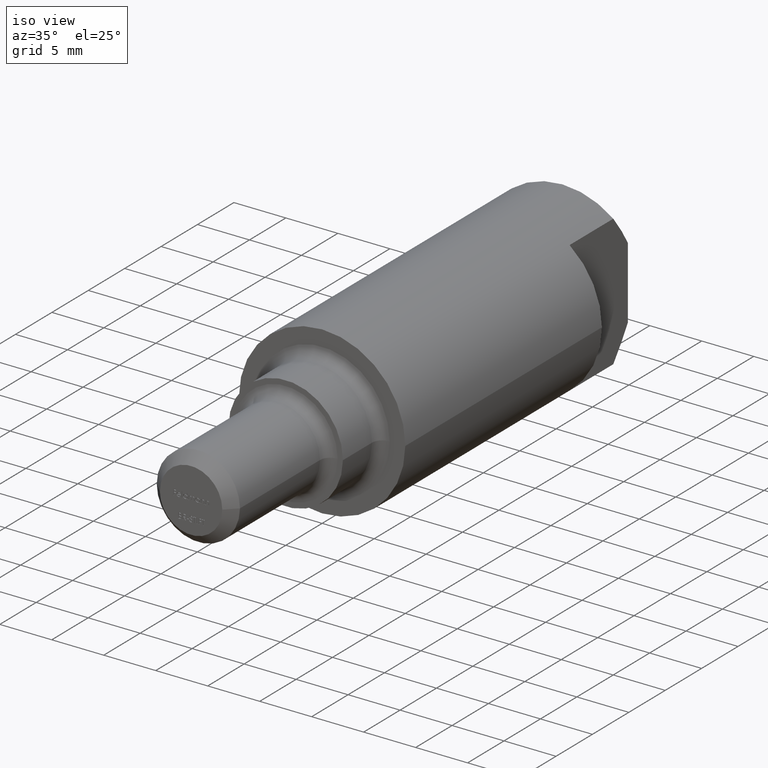
[diagram: clean part render]
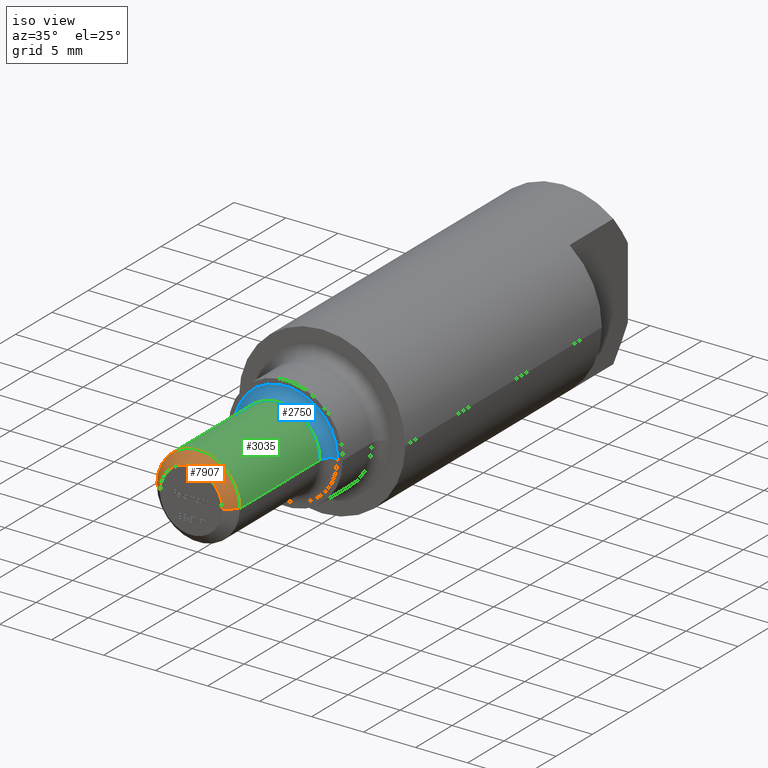
[diagram: same view with three faces highlighted in distinct colors, each labeled with its STEP entity id]
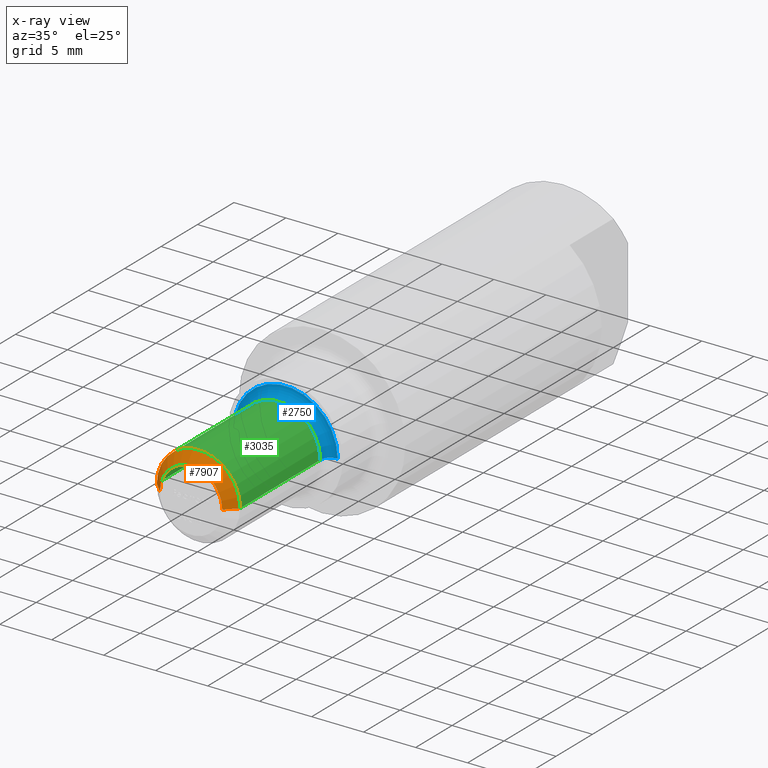
[diagram: x-ray of the same camera — body ghosted, the three highlighted faces saturated]
A machine part, iso view with three faces highlighted in distinct colors.
The next image is the same camera in x-ray (body ghosted, the three faces saturated) — at least one of them is partly hidden behind the body in this view.
Their STEP definitions:

[orange] entity #7907 — the highlighted conical surface has half-angle 45 deg.
#742 = ORIENTED_EDGE ( 'NONE', *, *, #9435, .F. ) ;
#862 = EDGE_CURVE ( 'NONE', #10551, #5815, #6851, .T. ) ;
#1272 = CARTESIAN_POINT ( 'NONE',  ( 4.000000000000000000, -11.99999999999999300, 0.0000000000000000000 ) ) ;
#1527 = ORIENTED_EDGE ( 'NONE', *, *, #3986, .F. ) ;
#1645 = ORIENTED_EDGE ( 'NONE', *, *, #862, .F. ) ;
#2229 = DIRECTION ( 'NONE',  ( 1.000000000000000000, 0.0000000000000000000, 0.0000000000000000000 ) ) ;
#2307 = EDGE_CURVE ( 'NONE', #7155, #9536, #9848, .T. ) ;
#2638 = CARTESIAN_POINT ( 'NONE',  ( 2.862293735361730500E-015, -11.99999999999999500, 0.0000000000000000000 ) ) ;
#2957 = CARTESIAN_POINT ( 'NONE',  ( 2.999999999999992500, -13.00000000000000200, 3.673940397442046100E-016 ) ) ;
#2981 = AXIS2_PLACEMENT_3D ( 'NONE', #6342, #8940, #4767 ) ;
#3108 = CIRCLE ( 'NONE', #10625, 3.999999999999997300 ) ;
#3144 = ORIENTED_EDGE ( 'NONE', *, *, #2307, .T. ) ;
#3167 = CARTESIAN_POINT ( 'NONE',  ( 2.999999999999993300, -13.00000000000000200, 4.286263797015728200E-016 ) ) ;
#3314 = VECTOR ( 'NONE', #6757, 1000.000000000000100 ) ;
#3471 = DIRECTION ( 'NONE',  ( 1.000000000000000000, 4.336808689942020700E-016, 0.0000000000000000000 ) ) ;
#3918 = DIRECTION ( 'NONE',  ( 2.385244779468109800E-016, -1.000000000000000000, -0.0000000000000000000 ) ) ;
#3986 = EDGE_CURVE ( 'NONE', #7155, #10551, #8371, .T. ) ;
#4231 = VECTOR ( 'NONE', #5455, 1000.000000000000000 ) ;
#4248 = CARTESIAN_POINT ( 'NONE',  ( -3.999999999999994700, -11.99999999999999600, 4.898587196589409900E-016 ) ) ;
#4767 = DIRECTION ( 'NONE',  ( -1.000000000000000000, 0.0000000000000000000, 0.0000000000000000000 ) ) ;
#4806 = CARTESIAN_POINT ( 'NONE',  ( -2.999999999999987100, -13.00000000000000200, 0.0000000000000000000 ) ) ;
#5031 = AXIS2_PLACEMENT_3D ( 'NONE', #5487, #3918, #2229 ) ;
#5455 = DIRECTION ( 'NONE',  ( 0.7071067811865474600, 0.7071067811865475700, 8.659560562354934100E-017 ) ) ;
#5487 = CARTESIAN_POINT ( 'NONE',  ( 3.100818213308542700E-015, -13.00000000000000200, 0.0000000000000000000 ) ) ;
#5815 = VERTEX_POINT ( 'NONE', #4248 ) ;
#6342 = CARTESIAN_POINT ( 'NONE',  ( 3.100818213308542700E-015, -13.00000000000000200, 0.0000000000000000000 ) ) ;
#6757 = DIRECTION ( 'NONE',  ( -0.7071067811865479100, 0.7071067811865471300, 0.0000000000000000000 ) ) ;
#6851 = LINE ( 'NONE', #10163, #3314 ) ;
#7155 = VERTEX_POINT ( 'NONE', #3167 ) ;
#7391 = CONICAL_SURFACE ( 'NONE', #2981, 2.999999999999989300, 0.7853981633974485000 ) ;
#7567 = EDGE_LOOP ( 'NONE', ( #1527, #3144, #742, #1645 ) ) ;
#7907 = ADVANCED_FACE ( 'NONE', ( #10406 ), #7391, .T. ) ;
#8371 = CIRCLE ( 'NONE', #5031, 2.999999999999990200 ) ;
#8498 = DIRECTION ( 'NONE',  ( -2.385244779468109800E-016, 1.000000000000000000, 0.0000000000000000000 ) ) ;
#8940 = DIRECTION ( 'NONE',  ( -2.385244779468109800E-016, 1.000000000000000000, 0.0000000000000000000 ) ) ;
#9435 = EDGE_CURVE ( 'NONE', #5815, #9536, #3108, .T. ) ;
#9536 = VERTEX_POINT ( 'NONE', #1272 ) ;
#9848 = LINE ( 'NONE', #2957, #4231 ) ;
#10163 = CARTESIAN_POINT ( 'NONE',  ( -2.999999999999986200, -13.00000000000000200, 0.0000000000000000000 ) ) ;
#10406 = FACE_OUTER_BOUND ( 'NONE', #7567, .T. ) ;
#10551 = VERTEX_POINT ( 'NONE', #4806 ) ;
#10625 = AXIS2_PLACEMENT_3D ( 'NONE', #2638, #8498, #3471 ) ;

[blue] entity #2750 — the highlighted toroidal blend (fillet) surface has major radius 5 mm and minor (blend) radius 1 mm.
#94 = DIRECTION ( 'NONE',  ( -1.000000000000000000, 0.0000000000000000000, 0.0000000000000000000 ) ) ;
#126 = ORIENTED_EDGE ( 'NONE', *, *, #3140, .F. ) ;
#757 = VERTEX_POINT ( 'NONE', #2388 ) ;
#833 = DIRECTION ( 'NONE',  ( 1.224646799147353200E-016, 2.921082384358555300E-032, 1.000000000000000000 ) ) ;
#911 = ORIENTED_EDGE ( 'NONE', *, *, #4404, .F. ) ;
#1691 = EDGE_LOOP ( 'NONE', ( #126, #3627, #2361, #911 ) ) ;
#1933 = EDGE_CURVE ( 'NONE', #757, #10565, #2528, .T. ) ;
#2361 = ORIENTED_EDGE ( 'NONE', *, *, #1933, .T. ) ;
#2375 = AXIS2_PLACEMENT_3D ( 'NONE', #9278, #833, #9207 ) ;
#2384 = CARTESIAN_POINT ( 'NONE',  ( 2.385244779468112200E-016, -1.000000000000001100, 0.0000000000000000000 ) ) ;
#2388 = CARTESIAN_POINT ( 'NONE',  ( 3.999999999999997300, -1.000000000000000200, 0.0000000000000000000 ) ) ;
#2528 = CIRCLE ( 'NONE', #6011, 1.000000000000000000 ) ;
#2750 = ADVANCED_FACE ( 'NONE', ( #9196 ), #6687, .F. ) ;
#3140 = EDGE_CURVE ( 'NONE', #7052, #9179, #10086, .T. ) ;
#3401 = DIRECTION ( 'NONE',  ( -2.385244779468109800E-016, 1.000000000000000000, 0.0000000000000000000 ) ) ;
#3470 = CARTESIAN_POINT ( 'NONE',  ( 2.407412430484044800E-031, -1.084202172485504400E-015, 0.0000000000000000000 ) ) ;
#3627 = ORIENTED_EDGE ( 'NONE', *, *, #6312, .F. ) ;
#4404 = EDGE_CURVE ( 'NONE', #9179, #10565, #10056, .T. ) ;
#4410 = DIRECTION ( 'NONE',  ( 0.0000000000000000000, 0.0000000000000000000, -1.000000000000000000 ) ) ;
#4838 = CARTESIAN_POINT ( 'NONE',  ( 2.385244779468112200E-016, -1.000000000000001100, 0.0000000000000000000 ) ) ;
#5126 = CARTESIAN_POINT ( 'NONE',  ( 4.999999999999997300, 5.421010862427493200E-017, 0.0000000000000000000 ) ) ;
#5432 = AXIS2_PLACEMENT_3D ( 'NONE', #4838, #6457, #10706 ) ;
#6011 = AXIS2_PLACEMENT_3D ( 'NONE', #7642, #4410, #94 ) ;
#6312 = EDGE_CURVE ( 'NONE', #757, #7052, #6743, .T. ) ;
#6457 = DIRECTION ( 'NONE',  ( 2.385244779468109800E-016, -1.000000000000000000, -0.0000000000000000000 ) ) ;
#6683 = CARTESIAN_POINT ( 'NONE',  ( -3.999999999999997300, -1.000000000000002000, 4.898587196589410900E-016 ) ) ;
#6687 = TOROIDAL_SURFACE ( 'NONE', #6699, 4.999999999999997300, 1.000000000000000000 ) ;
#6699 = AXIS2_PLACEMENT_3D ( 'NONE', #2384, #7381, #9062 ) ;
#6743 = CIRCLE ( 'NONE', #5432, 3.999999999999997300 ) ;
#6895 = CARTESIAN_POINT ( 'NONE',  ( -4.999999999999997300, -2.222614453595283700E-015, 6.123233995736763300E-016 ) ) ;
#7052 = VERTEX_POINT ( 'NONE', #6683 ) ;
#7381 = DIRECTION ( 'NONE',  ( 2.385244779468109800E-016, -1.000000000000000000, -0.0000000000000000000 ) ) ;
#7642 = CARTESIAN_POINT ( 'NONE',  ( 4.999999999999997300, -1.000000000000000000, 0.0000000000000000000 ) ) ;
#9062 = DIRECTION ( 'NONE',  ( 1.000000000000000000, 2.385244779468109800E-016, 0.0000000000000000000 ) ) ;
#9179 = VERTEX_POINT ( 'NONE', #6895 ) ;
#9196 = FACE_OUTER_BOUND ( 'NONE', #1691, .T. ) ;
#9207 = DIRECTION ( 'NONE',  ( 1.000000000000000000, 0.0000000000000000000, -1.224646799147353500E-016 ) ) ;
#9278 = CARTESIAN_POINT ( 'NONE',  ( -4.999999999999997300, -1.000000000000002200, 6.123233995736763300E-016 ) ) ;
#9302 = DIRECTION ( 'NONE',  ( 1.000000000000000000, 2.385244779468109800E-016, 0.0000000000000000000 ) ) ;
#10056 = CIRCLE ( 'NONE', #10779, 4.999999999999997300 ) ;
#10086 = CIRCLE ( 'NONE', #2375, 1.000000000000000000 ) ;
#10565 = VERTEX_POINT ( 'NONE', #5126 ) ;
#10706 = DIRECTION ( 'NONE',  ( 1.000000000000000000, 2.168404344971010300E-016, 0.0000000000000000000 ) ) ;
#10779 = AXIS2_PLACEMENT_3D ( 'NONE', #3470, #3401, #9302 ) ;

[green] entity #3035 — the highlighted cylindrical surface (partial cylindrical patch) has radius 4 mm, axis along (0, -1, -0).
#5 = EDGE_CURVE ( 'NONE', #757, #9536, #5693, .T. ) ;
#257 = LINE ( 'NONE', #2690, #3928 ) ;
#757 = VERTEX_POINT ( 'NONE', #2388 ) ;
#785 = ORIENTED_EDGE ( 'NONE', *, *, #10353, .T. ) ;
#1272 = CARTESIAN_POINT ( 'NONE',  ( 4.000000000000000000, -11.99999999999999300, 0.0000000000000000000 ) ) ;
#1615 = FACE_OUTER_BOUND ( 'NONE', #8622, .T. ) ;
#2388 = CARTESIAN_POINT ( 'NONE',  ( 3.999999999999997300, -1.000000000000000200, 0.0000000000000000000 ) ) ;
#2439 = CARTESIAN_POINT ( 'NONE',  ( 0.0000000000000000000, 0.0000000000000000000, 0.0000000000000000000 ) ) ;
#2638 = CARTESIAN_POINT ( 'NONE',  ( 2.862293735361730500E-015, -11.99999999999999500, 0.0000000000000000000 ) ) ;
#2690 = CARTESIAN_POINT ( 'NONE',  ( -3.999999999999997300, -9.540979117872431100E-016, 4.898587196589409900E-016 ) ) ;
#3035 = ADVANCED_FACE ( 'NONE', ( #1615 ), #3279, .T. ) ;
#3108 = CIRCLE ( 'NONE', #10625, 3.999999999999997300 ) ;
#3121 = ORIENTED_EDGE ( 'NONE', *, *, #5, .F. ) ;
#3279 = CYLINDRICAL_SURFACE ( 'NONE', #8404, 3.999999999999997300 ) ;
#3471 = DIRECTION ( 'NONE',  ( 1.000000000000000000, 4.336808689942020700E-016, 0.0000000000000000000 ) ) ;
#3928 = VECTOR ( 'NONE', #6087, 1000.000000000000000 ) ;
#4248 = CARTESIAN_POINT ( 'NONE',  ( -3.999999999999994700, -11.99999999999999600, 4.898587196589409900E-016 ) ) ;
#4699 = DIRECTION ( 'NONE',  ( 2.385244779468109800E-016, -1.000000000000000000, -0.0000000000000000000 ) ) ;
#4838 = CARTESIAN_POINT ( 'NONE',  ( 2.385244779468112200E-016, -1.000000000000001100, 0.0000000000000000000 ) ) ;
#5432 = AXIS2_PLACEMENT_3D ( 'NONE', #4838, #6457, #10706 ) ;
#5693 = LINE ( 'NONE', #9687, #10777 ) ;
#5815 = VERTEX_POINT ( 'NONE', #4248 ) ;
#6087 = DIRECTION ( 'NONE',  ( 2.385244779468109800E-016, -1.000000000000000000, -0.0000000000000000000 ) ) ;
#6312 = EDGE_CURVE ( 'NONE', #757, #7052, #6743, .T. ) ;
#6457 = DIRECTION ( 'NONE',  ( 2.385244779468109800E-016, -1.000000000000000000, -0.0000000000000000000 ) ) ;
#6683 = CARTESIAN_POINT ( 'NONE',  ( -3.999999999999997300, -1.000000000000002000, 4.898587196589410900E-016 ) ) ;
#6743 = CIRCLE ( 'NONE', #5432, 3.999999999999997300 ) ;
#7052 = VERTEX_POINT ( 'NONE', #6683 ) ;
#8229 = DIRECTION ( 'NONE',  ( 1.000000000000000000, 2.385244779468109300E-016, 0.0000000000000000000 ) ) ;
#8404 = AXIS2_PLACEMENT_3D ( 'NONE', #2439, #10774, #8229 ) ;
#8498 = DIRECTION ( 'NONE',  ( -2.385244779468109800E-016, 1.000000000000000000, 0.0000000000000000000 ) ) ;
#8622 = EDGE_LOOP ( 'NONE', ( #9053, #785, #9022, #3121 ) ) ;
#9022 = ORIENTED_EDGE ( 'NONE', *, *, #9435, .T. ) ;
#9053 = ORIENTED_EDGE ( 'NONE', *, *, #6312, .T. ) ;
#9435 = EDGE_CURVE ( 'NONE', #5815, #9536, #3108, .T. ) ;
#9536 = VERTEX_POINT ( 'NONE', #1272 ) ;
#9687 = CARTESIAN_POINT ( 'NONE',  ( 3.999999999999997300, 9.540979117872431100E-016, 0.0000000000000000000 ) ) ;
#10353 = EDGE_CURVE ( 'NONE', #7052, #5815, #257, .T. ) ;
#10625 = AXIS2_PLACEMENT_3D ( 'NONE', #2638, #8498, #3471 ) ;
#10706 = DIRECTION ( 'NONE',  ( 1.000000000000000000, 2.168404344971010300E-016, 0.0000000000000000000 ) ) ;
#10774 = DIRECTION ( 'NONE',  ( 2.385244779468109800E-016, -1.000000000000000000, -0.0000000000000000000 ) ) ;
#10777 = VECTOR ( 'NONE', #4699, 1000.000000000000000 ) ;